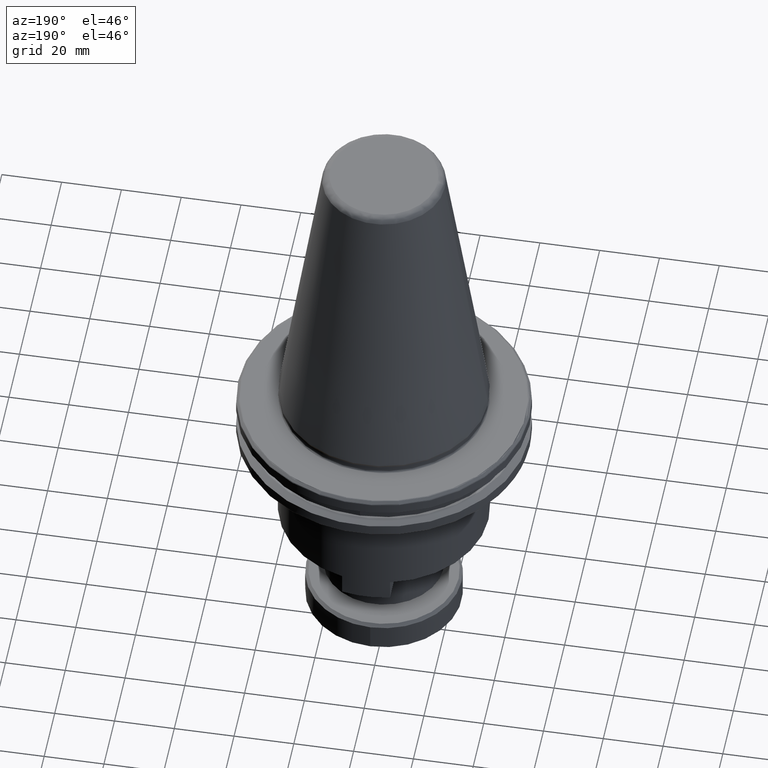
[diagram: clean part render]
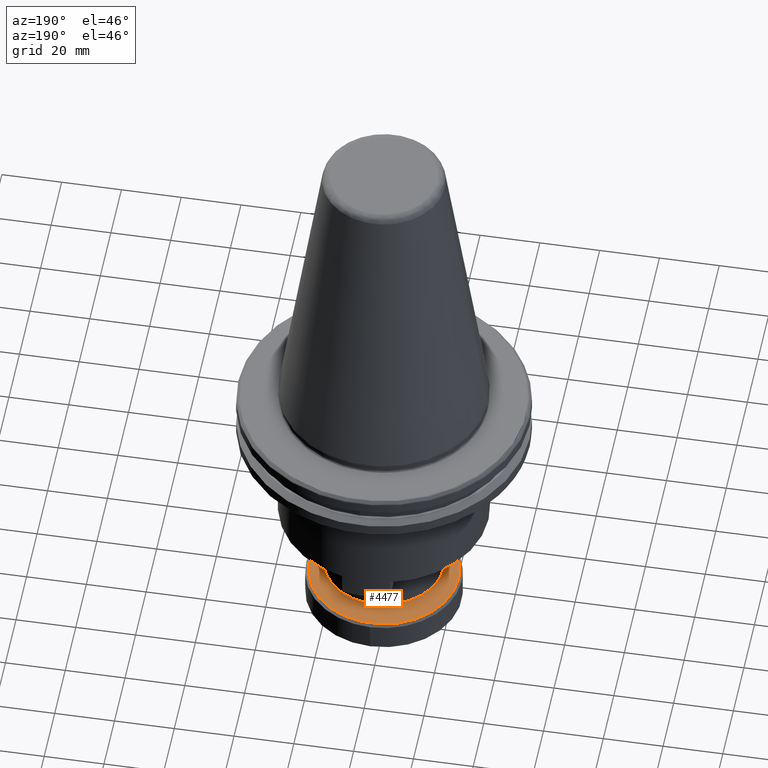
[diagram: same view with one face highlighted and labeled with its STEP entity id]
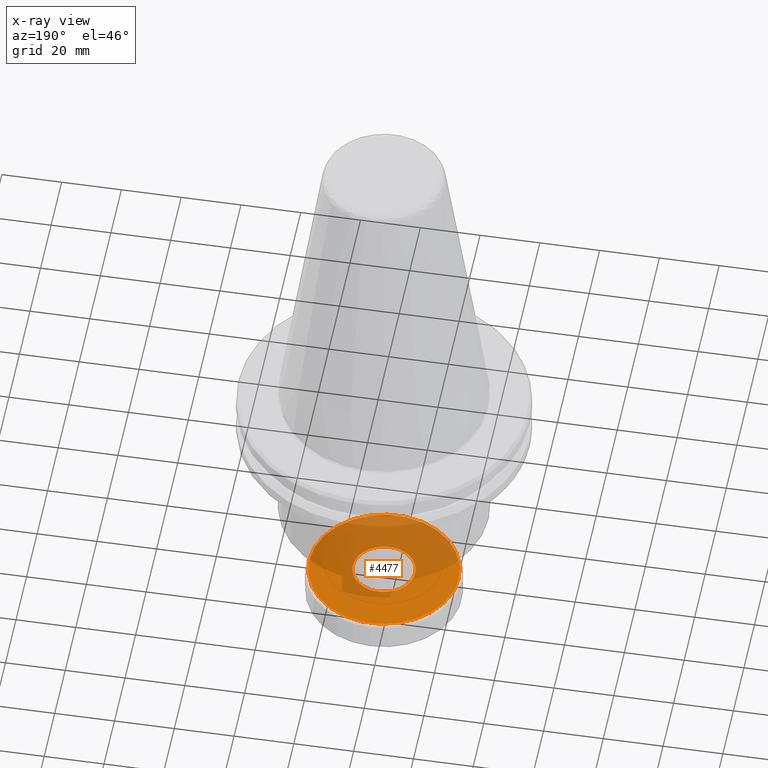
[diagram: x-ray of the same camera — body ghosted, the highlighted face saturated]
A machine part, auxiliary view. The second image highlights one B-rep face of the part: STEP entity #4477.
The next image is the same camera in x-ray: the body ghosted, the highlighted face saturated — about 56% of this face is hidden behind the body in this view.
In plain terms, the highlighted planar face has unit normal (0, 0, 1).
Its self-contained STEP definition (entity closure, byte-faithful):
#3 = CARTESIAN_POINT ( 'NONE',  ( 118.4032396008480500, 180.3901832155320600, 138.8002788091370400 ) ) ;
#27 = CARTESIAN_POINT ( 'NONE',  ( 125.8238660426750900, 199.8214570433929700, 138.8002788091370100 ) ) ;
#45 = CARTESIAN_POINT ( 'NONE',  ( 130.5011908329456700, 196.2975712667894500, 138.8002788091370700 ) ) ;
#57 = CARTESIAN_POINT ( 'NONE',  ( 132.2580884883132300, 192.5598676333413600, 138.8002788091370100 ) ) ;
#179 = CARTESIAN_POINT ( 'NONE',  ( 132.4267637943718800, 188.4723831557644800, 138.8002788091370700 ) ) ;
#189 = CARTESIAN_POINT ( 'NONE',  ( 131.4758307507888400, 185.4581740208667200, 138.8002788091370400 ) ) ;
#289 = CARTESIAN_POINT ( 'NONE',  ( 111.9878614985064600, 192.3146872473978100, 138.8002788091370100 ) ) ;
#301 = CARTESIAN_POINT ( 'NONE',  ( 113.2559242665402100, 184.6938087737610200, 138.8002788091370400 ) ) ;
#302 = CARTESIAN_POINT ( 'NONE',  ( 113.8408133900018300, 196.3824266841156400, 138.8002788091370100 ) ) ;
#319 = CARTESIAN_POINT ( 'NONE',  ( 111.9342757157283300, 188.1569107248737400, 138.8002788091370400 ) ) ;
#320 = CARTESIAN_POINT ( 'NONE',  ( 118.2431241954778200, 199.7279776143421100, 138.8002788091371000 ) ) ;
#344 = CARTESIAN_POINT ( 'NONE',  ( 122.9457563578517400, 200.4691115598203100, 138.8002788091370100 ) ) ;
#378 = CARTESIAN_POINT ( 'NONE',  ( 126.0202769363419600, 180.4365008800169200, 138.8002788091370700 ) ) ;
#397 = CARTESIAN_POINT ( 'NONE',  ( 120.8091985560709400, 179.7757684358080000, 138.8002788091370400 ) ) ;
#414 = ORIENTED_EDGE ( 'NONE', *, *, #2059, .T. ) ;
#417 = CARTESIAN_POINT ( 'NONE',  ( 117.9981118212874800, 180.5502733429990200, 138.8002788091370700 ) ) ;
#424 = VERTEX_POINT ( 'NONE', #4429 ) ;
#432 = CARTESIAN_POINT ( 'NONE',  ( 125.9402706081273500, 199.7767452268588200, 138.8002788091370400 ) ) ;
#449 = CARTESIAN_POINT ( 'NONE',  ( 130.7584959476619400, 195.9313388702376000, 138.8002788091370400 ) ) ;
#466 = CARTESIAN_POINT ( 'NONE',  ( 132.3515593962334500, 192.1281225215070400, 138.8002788091370400 ) ) ;
#502 = CARTESIAN_POINT ( 'NONE',  ( 122.1529126039459900, 190.0907862128019900, 138.8002788091371000 ) ) ;
#508 = CIRCLE ( 'NONE', #2662, 24.99999999999998200 ) ;
#560 = CARTESIAN_POINT ( 'NONE',  ( 96.85291260394599500, 164.7907862128020000, 138.8002788091370400 ) ) ;
#584 = CARTESIAN_POINT ( 'NONE',  ( 132.3934745250912200, 188.2766046778066600, 138.8002788091370400 ) ) ;
#597 = CARTESIAN_POINT ( 'NONE',  ( 131.0451316036002800, 184.6966445211339200, 138.8002788091370400 ) ) ;
#633 = CARTESIAN_POINT ( 'NONE',  ( 122.1529126039459900, 190.0907862128019900, 138.8002788091371000 ) ) ;
#672 = CARTESIAN_POINT ( 'NONE',  ( 111.7529126036150000, 190.0907862128019900, 138.8002788092035200 ) ) ;
#683 = CARTESIAN_POINT ( 'NONE',  ( 112.2795165434658000, 193.3659967547016800, 138.8002788091370100 ) ) ;
#702 = CARTESIAN_POINT ( 'NONE',  ( 112.7233808676794200, 185.6976791207829900, 138.8002788091370400 ) ) ;
#703 = CARTESIAN_POINT ( 'NONE',  ( 115.0527034919476300, 197.6984244229599600, 138.8002788091370400 ) ) ;
#718 = CARTESIAN_POINT ( 'NONE',  ( 111.8107873264386000, 188.8236881382048600, 138.8002788091370700 ) ) ;
#720 = CARTESIAN_POINT ( 'NONE',  ( 118.6381624470018600, 199.8846885327824300, 138.8002788091370100 ) ) ;
#739 = CARTESIAN_POINT ( 'NONE',  ( 123.7712485750507600, 200.3646498141189900, 138.8002788091370700 ) ) ;
#757 = CARTESIAN_POINT ( 'NONE',  ( 128.8549795203749400, 182.1239968894207700, 138.8002788091370400 ) ) ;
#782 = CARTESIAN_POINT ( 'NONE',  ( 125.1906154896054800, 180.1342337137948800, 138.8002788091370100 ) ) ;
#798 = CARTESIAN_POINT ( 'NONE',  ( 120.3974689771752200, 179.8398747969896500, 138.8002788091370100 ) ) ;
#809 = CARTESIAN_POINT ( 'NONE',  ( 116.9840502846586100, 181.0631450047062900, 138.8002788091370400 ) ) ;
#833 = CARTESIAN_POINT ( 'NONE',  ( 126.7855247958908100, 199.4137043596407500, 138.8002788091370700 ) ) ;
#849 = CARTESIAN_POINT ( 'NONE',  ( 131.0499009413494500, 195.4877636518481300, 138.8002788091370400 ) ) ;
#861 = CARTESIAN_POINT ( 'NONE',  ( 132.3715494921633800, 192.0246617007309200, 138.8002788091370100 ) ) ;
#904 = DIRECTION ( 'NONE',  ( -1.000000000000000000, 0.0000000000000000000, 0.0000000000000000000 ) ) ;
#934 = EDGE_CURVE ( 'NONE', #424, #2997, #2309, .T. ) ;
#976 = CARTESIAN_POINT ( 'NONE',  ( 132.3831212312066400, 188.2190882982455100, 138.8002788091370100 ) ) ;
#987 = CARTESIAN_POINT ( 'NONE',  ( 130.9067476837759000, 184.4748871569024400, 138.8002788091370400 ) ) ;
#1010 = ORIENTED_EDGE ( 'NONE', *, *, #2864, .T. ) ;
#1031 = DIRECTION ( 'NONE',  ( -1.000000000000000000, 0.0000000000000000000, 0.0000000000000000000 ) ) ;
#1073 = CARTESIAN_POINT ( 'NONE',  ( 116.5370135480495900, 181.3369511329680400, 138.8002788091370100 ) ) ;
#1074 = CARTESIAN_POINT ( 'NONE',  ( 112.4222417733565500, 193.7617396515243800, 138.8002788091370400 ) ) ;
#1090 = CARTESIAN_POINT ( 'NONE',  ( 112.5490639334355900, 186.0997802054237700, 138.8002788091370400 ) ) ;
#1091 = CARTESIAN_POINT ( 'NONE',  ( 115.9461275499598800, 198.4390644418052100, 138.8002788091370400 ) ) ;
#1103 = CARTESIAN_POINT ( 'NONE',  ( 111.7529126036150000, 190.0907862128019900, 138.8002788092035200 ) ) ;
#1104 = CARTESIAN_POINT ( 'NONE',  ( 119.6838311834227400, 200.1959620971792300, 138.8002788091370400 ) ) ;
#1131 = CARTESIAN_POINT ( 'NONE',  ( 123.9670730890184100, 200.3313520281837400, 138.8002788091370100 ) ) ;
#1148 = CARTESIAN_POINT ( 'NONE',  ( 128.1408377238430800, 181.5870528942168400, 138.8002788091370100 ) ) ;
#1163 = CARTESIAN_POINT ( 'NONE',  ( 124.3346667130528300, 179.9215824249458500, 138.8002788091370100 ) ) ;
#1177 = CARTESIAN_POINT ( 'NONE',  ( 120.2996172279103300, 179.8572305642626400, 138.8002788091370400 ) ) ;
#1213 = CARTESIAN_POINT ( 'NONE',  ( 127.5470542956182400, 198.9830052124554500, 138.8002788091370700 ) ) ;
#1225 = CARTESIAN_POINT ( 'NONE',  ( 131.5824443402094900, 194.4838933048278000, 138.8002788091371000 ) ) ;
#1246 = CARTESIAN_POINT ( 'NONE',  ( 132.4950378814533300, 191.3578842874085200, 138.8002788091370400 ) ) ;
#1285 = PLANE ( 'NONE',  #3709 ) ;
#1361 = CARTESIAN_POINT ( 'NONE',  ( 132.2023979770025900, 187.3763000568012600, 138.8002788091370400 ) ) ;
#1378 = CARTESIAN_POINT ( 'NONE',  ( 130.0142259536647200, 183.2443310593732800, 138.8002788091370700 ) ) ;
#1450 = CARTESIAN_POINT ( 'NONE',  ( 111.7746156246735000, 190.8837833059691300, 138.8002788091370700 ) ) ;
#1462 = CARTESIAN_POINT ( 'NONE',  ( 115.3064574505317900, 182.2294728630619100, 138.8002788091370700 ) ) ;
#1463 = CARTESIAN_POINT ( 'NONE',  ( 112.4669535898934900, 193.8781442169856500, 138.8002788091370700 ) ) ;
#1481 = CARTESIAN_POINT ( 'NONE',  ( 112.4986272711638400, 186.2234218804074100, 138.8002788091370100 ) ) ;
#1482 = CARTESIAN_POINT ( 'NONE',  ( 116.3123599465114400, 198.6963695565207200, 138.8002788091370700 ) ) ;
#1499 = CARTESIAN_POINT ( 'NONE',  ( 120.1155762952460000, 200.2894330050955900, 138.8002788091370700 ) ) ;
#1522 = CARTESIAN_POINT ( 'NONE',  ( 124.0246105185020900, 200.3209948400670200, 138.8002788091370700 ) ) ;
#1532 = CARTESIAN_POINT ( 'NONE',  ( 127.9173950384248100, 181.4340916509611100, 138.8002788091370400 ) ) ;
#1555 = CARTESIAN_POINT ( 'NONE',  ( 124.1281939671720800, 179.8800719073140000, 138.8002788091370400 ) ) ;
#1574 = CARTESIAN_POINT ( 'NONE',  ( 119.9290115693353400, 179.9257351073609900, 138.8002788091370400 ) ) ;
#1601 = CARTESIAN_POINT ( 'NONE',  ( 127.7688116598425300, 198.8446212926357400, 138.8002788091370700 ) ) ;
#1619 = CARTESIAN_POINT ( 'NONE',  ( 131.7567612744553600, 194.0817922201825600, 138.8002788091370400 ) ) ;
#1631 = CARTESIAN_POINT ( 'NONE',  ( 132.5529126042770000, 190.0907862128019900, 138.8002788092035200 ) ) ;
#1744 = CARTESIAN_POINT ( 'NONE',  ( 131.9279483519305500, 186.5381197085303000, 138.8002788091370700 ) ) ;
#1826 = CARTESIAN_POINT ( 'NONE',  ( 111.8790614135201200, 191.7091892698336400, 138.8002788091370400 ) ) ;
#1847 = CARTESIAN_POINT ( 'NONE',  ( 114.1861232805550200, 183.3887192963890100, 138.8002788091370400 ) ) ;
#1848 = CARTESIAN_POINT ( 'NONE',  ( 112.8299944570960300, 194.7233984047212500, 138.8002788091370700 ) ) ;
#1865 = CARTESIAN_POINT ( 'NONE',  ( 112.1963601049475600, 187.0530833271167500, 138.8002788091370400 ) ) ;
#1867 = CARTESIAN_POINT ( 'NONE',  ( 116.7559351649051100, 198.9877745502098800, 138.8002788091370700 ) ) ;
#1881 = CARTESIAN_POINT ( 'NONE',  ( 120.2190371160186000, 200.3094231010241800, 138.8002788091370700 ) ) ;
#1900 = CARTESIAN_POINT ( 'NONE',  ( 124.8673987599569600, 200.1402715858610900, 138.8002788091370400 ) ) ;
#1919 = CARTESIAN_POINT ( 'NONE',  ( 127.0965374887277300, 180.9289909832406000, 138.8002788091370400 ) ) ;
#1936 = CARTESIAN_POINT ( 'NONE',  ( 124.0648640469287300, 179.8680265368561800, 138.8002788091370400 ) ) ;
#1950 = CARTESIAN_POINT ( 'NONE',  ( 118.8777020620268300, 180.2173901523216600, 138.8002788091370400 ) ) ;
#1987 = CARTESIAN_POINT ( 'NONE',  ( 128.9993677573656600, 197.9520995625366300, 138.8002788091370700 ) ) ;
#2002 = CARTESIAN_POINT ( 'NONE',  ( 131.8071979367284100, 193.9581505451957900, 138.8002788091370400 ) ) ;
#2059 = EDGE_CURVE ( 'NONE', #3065, #2717, #4334, .T. ) ;
#2116 = DIRECTION ( 'NONE',  ( 1.000000000000000000, 0.0000000000000000000, -0.0000000000000000000 ) ) ;
#2124 = CARTESIAN_POINT ( 'NONE',  ( 132.5529126042775400, 189.7728175699236300, 138.8002788091370400 ) ) ;
#2136 = CARTESIAN_POINT ( 'NONE',  ( 131.8535156012124500, 186.3411132097051300, 138.8002788091370700 ) ) ;
#2205 = ORIENTED_EDGE ( 'NONE', *, *, #2473, .T. ) ;
#2212 = CARTESIAN_POINT ( 'NONE',  ( 111.7529126036145200, 190.4087548556727000, 138.8002788091370400 ) ) ;
#2232 = CARTESIAN_POINT ( 'NONE',  ( 111.9123506828007900, 191.9049677477954400, 138.8002788091370700 ) ) ;
#2248 = CARTESIAN_POINT ( 'NONE',  ( 113.6491792853574600, 184.1028610929121800, 138.8002788091370700 ) ) ;
#2249 = CARTESIAN_POINT ( 'NONE',  ( 113.2606936042883300, 195.4849279044624100, 138.8002788091370400 ) ) ;
#2261 = CARTESIAN_POINT ( 'NONE',  ( 111.9837088160961500, 187.9090321036838700, 138.8002788091370400 ) ) ;
#2262 = CARTESIAN_POINT ( 'NONE',  ( 117.7598055119266600, 199.5203179490710900, 138.8002788091370700 ) ) ;
#2286 = CARTESIAN_POINT ( 'NONE',  ( 120.8856391895394500, 200.4328790340306600, 138.8002788091370100 ) ) ;
#2309 = B_SPLINE_CURVE_WITH_KNOTS ( 'NONE', 3,
 ( #4461, #2124, #4853, #2524, #179, #2917, #584, #3307, #976, #3689, #1361, #4080, #1744, #4478, #2136, #4868, #2542, #189, #2933, #597, #3319, #987, #3707, #1378, #3092, #757, #3483, #1148, #3861, #1532, #4263, #1919, #4648, #2319, #5038, #2718, #378, #3107, #782, #3494, #1163, #3880, #1555, #4273, #1936, #4670, #2331, #5049, #2738, #397, #3118, #798, #3512, #1177, #3895, #1574, #4291, #1950, #4686, #2352, #3, #2752, #417, #3135, #809, #3529, #3405, #1073, #3785, #1462, #4184, #1847, #4576, #2248, #4964, #2647, #301, #3034, #702, #3421, #1090, #3804, #1481, #4202, #1865, #4596, #2261, #4982, #2668, #319, #3050, #718, #3445, #1103 ),
 .UNSPECIFIED., .F., .F.,
 ( 4, 1, 1, 1, 1, 2, 2, 1, 1, 1, 2, 2, 1, 1, 2, 2, 2, 1, 1, 2, 2, 1, 1, 1, 2, 2, 1, 1, 1, 1, 2, 2, 2, 1, 1, 1, 1, 2, 2, 1, 1, 1, 2, 2, 1, 1, 2, 2, 2, 1, 1, 2, 2, 1, 1, 1, 2, 2, 1, 1, 1, 1, 2, 2, 4 ),
 ( 0.0000000000000000000, 0.03125000000001038100, 0.04687500000001569600, 0.05468750000001700000, 0.05859375000001743700, 0.06054687500001899900, 0.06250000000002056700, 0.09375000000003674800, 0.1093750000000448400, 0.1171875000000480700, 0.1210937500000497000, 0.1250000000000513200, 0.1562500000000702500, 0.1718750000000808200, 0.1796875000000867400, 0.1875000000000926200, 0.2500000000001371700, 0.2812500000001586000, 0.2968750000001685900, 0.3046875000001725300, 0.3125000000001765300, 0.3437500000001896800, 0.3593750000001962900, 0.3671875000002006700, 0.3710937500002028900, 0.3750000000002050600, 0.4062500000002218200, 0.4218750000002302000, 0.4296875000002343700, 0.4335937500002364800, 0.4355468750002377500, 0.4375000000002390900, 0.5000000000002523500, 0.5312500000002596800, 0.5468750000002631200, 0.5546875000002642300, 0.5585937500002653400, 0.5605468750002650100, 0.5625000000002646800, 0.5937500000002587900, 0.6093750000002551300, 0.6171875000002533500, 0.6210937500002522400, 0.6250000000002512400, 0.6562500000002391400, 0.6718750000002324800, 0.6796875000002287100, 0.6875000000002248200, 0.7500000000001949600, 0.7812500000001804100, 0.7968750000001731900, 0.8046875000001703100, 0.8125000000001673100, 0.8437500000001511000, 0.8593750000001416600, 0.8671875000001378900, 0.8710937500001344500, 0.8750000000001311200, 0.9062500000001012500, 0.9218750000000864900, 0.9296875000000779400, 0.9335937500000747200, 0.9355468750000731600, 0.9375000000000716100, 1.000000000000000000 ),
 .UNSPECIFIED. ) ;
#2319 = CARTESIAN_POINT ( 'NONE',  ( 126.2653591796890100, 180.5376874400268700, 138.8002788091370700 ) ) ;
#2331 = CARTESIAN_POINT ( 'NONE',  ( 122.7886746448043700, 179.6908186327405000, 138.8002788091370400 ) ) ;
#2352 = CARTESIAN_POINT ( 'NONE',  ( 118.4819591652170200, 180.3601153822103500, 138.8002788091370400 ) ) ;
#2375 = CARTESIAN_POINT ( 'NONE',  ( 125.7055791082218800, 199.8658219607892800, 138.8002788091370100 ) ) ;
#2388 = CARTESIAN_POINT ( 'NONE',  ( 130.1197019273321900, 196.7928531292197900, 138.8002788091370400 ) ) ;
#2408 = CARTESIAN_POINT ( 'NONE',  ( 132.1094651029408500, 193.1284890984980200, 138.8002788091370400 ) ) ;
#2473 = EDGE_CURVE ( 'NONE', #2717, #3065, #508, .T. ) ;
#2524 = CARTESIAN_POINT ( 'NONE',  ( 132.4679091051295600, 188.7469571604622400, 138.8002788091370100 ) ) ;
#2542 = CARTESIAN_POINT ( 'NONE',  ( 131.6934254737533100, 185.9359854301545700, 138.8002788091370400 ) ) ;
#2630 = CARTESIAN_POINT ( 'NONE',  ( 111.9227039766855300, 191.9624841273590100, 138.8002788091370100 ) ) ;
#2647 = CARTESIAN_POINT ( 'NONE',  ( 113.4962180421056200, 184.3263037783250700, 138.8002788091370400 ) ) ;
#2648 = CARTESIAN_POINT ( 'NONE',  ( 113.3990775241163800, 195.7066852687012500, 138.8002788091370400 ) ) ;
#2662 = AXIS2_PLACEMENT_3D ( 'NONE', #633, #3355, #1031 ) ;
#2668 = CARTESIAN_POINT ( 'NONE',  ( 111.9421982984628300, 188.1155048495723200, 138.8002788091369800 ) ) ;
#2669 = CARTESIAN_POINT ( 'NONE',  ( 118.1619065965679200, 199.6946348833154400, 138.8002788091370700 ) ) ;
#2686 = CARTESIAN_POINT ( 'NONE',  ( 122.4707936243816000, 200.4908024232762500, 138.8002788091370400 ) ) ;
#2717 = VERTEX_POINT ( 'NONE', #3900 ) ;
#2718 = CARTESIAN_POINT ( 'NONE',  ( 126.0627010124113500, 180.4535948112600200, 138.8002788091370400 ) ) ;
#2738 = CARTESIAN_POINT ( 'NONE',  ( 121.3600688500514900, 179.7124608657835600, 138.8002788091370400 ) ) ;
#2752 = CARTESIAN_POINT ( 'NONE',  ( 118.3655545997653600, 180.4048271987447000, 138.8002788091370400 ) ) ;
#2772 = CARTESIAN_POINT ( 'NONE',  ( 125.9025856070439900, 199.7913892100715400, 138.8002788091370400 ) ) ;
#2790 = CARTESIAN_POINT ( 'NONE',  ( 130.6566459225321900, 196.0787113326941300, 138.8002788091370400 ) ) ;
#2803 = CARTESIAN_POINT ( 'NONE',  ( 132.3221163917942800, 192.2725403219248800, 138.8002788091370700 ) ) ;
#2858 = EDGE_LOOP ( 'NONE', ( #1010, #4970 ) ) ;
#2864 = EDGE_CURVE ( 'NONE', #2997, #424, #4625, .T. ) ;
#2917 = CARTESIAN_POINT ( 'NONE',  ( 132.4038173710646300, 188.3353066471359500, 138.8002788091370100 ) ) ;
#2933 = CARTESIAN_POINT ( 'NONE',  ( 131.1805538120489700, 184.9219238935291100, 138.8002788091370400 ) ) ;
#2956 = FACE_BOUND ( 'NONE', #2858, .T. ) ;
#2997 = VERTEX_POINT ( 'NONE', #4283 ) ;
#3020 = CARTESIAN_POINT ( 'NONE',  ( 112.1034272308837400, 192.8052723687864000, 138.8002788091370700 ) ) ;
#3034 = CARTESIAN_POINT ( 'NONE',  ( 112.9911173744002300, 185.1471613280002900, 138.8002788091370400 ) ) ;
#3036 = CARTESIAN_POINT ( 'NONE',  ( 114.2915992542126400, 196.9372413662206000, 138.8002788091370100 ) ) ;
#3050 = CARTESIAN_POINT ( 'NONE',  ( 111.9301539422632900, 188.1788292904497300, 138.8002788091370100 ) ) ;
#3051 = CARTESIAN_POINT ( 'NONE',  ( 118.2855482715510900, 199.7450715455872200, 138.8002788091371300 ) ) ;
#3065 = VERTEX_POINT ( 'NONE', #4744 ) ;
#3072 = CARTESIAN_POINT ( 'NONE',  ( 123.4966266518295300, 200.4058039897960000, 138.8002788091370700 ) ) ;
#3092 = CARTESIAN_POINT ( 'NONE',  ( 129.2531217159517200, 182.4831480026489600, 138.8002788091369800 ) ) ;
#3107 = CARTESIAN_POINT ( 'NONE',  ( 125.6676627608815700, 180.2968838928212800, 138.8002788091370100 ) ) ;
#3118 = CARTESIAN_POINT ( 'NONE',  ( 120.5345766328461800, 179.8169226114849600, 138.8002788091370400 ) ) ;
#3135 = CARTESIAN_POINT ( 'NONE',  ( 117.5203004119911900, 180.7678680659694800, 138.8002788091370400 ) ) ;
#3157 = CARTESIAN_POINT ( 'NONE',  ( 126.3077133865987900, 199.6312990826084800, 138.8002788091370400 ) ) ;
#3172 = CARTESIAN_POINT ( 'NONE',  ( 130.8096071657869900, 195.8552686472776300, 138.8002788091370100 ) ) ;
#3186 = CARTESIAN_POINT ( 'NONE',  ( 132.3636269094286000, 192.0660675760330800, 138.8002788091370400 ) ) ;
#3229 = DIRECTION ( 'NONE',  ( -0.0000000000000000000, -0.0000000000000000000, 1.000000000000000000 ) ) ;
#3307 = CARTESIAN_POINT ( 'NONE',  ( 132.3864662578741600, 188.2374800550976200, 138.8002788091370100 ) ) ;
#3319 = CARTESIAN_POINT ( 'NONE',  ( 130.9528779204146400, 184.5474676308149100, 138.8002788091370700 ) ) ;
#3355 = DIRECTION ( 'NONE',  ( -0.0000000000000000000, -0.0000000000000000000, 1.000000000000000000 ) ) ;
#3405 = CARTESIAN_POINT ( 'NONE',  ( 116.6095940219541800, 181.2908208963344000, 138.8002788091370700 ) ) ;
#3406 = CARTESIAN_POINT ( 'NONE',  ( 112.3778768559590200, 193.6434527170664800, 138.8002788091370400 ) ) ;
#3421 = CARTESIAN_POINT ( 'NONE',  ( 112.5998138311796300, 185.9783396370501400, 138.8002788091370400 ) ) ;
#3422 = CARTESIAN_POINT ( 'NONE',  ( 115.4508456875298100, 198.0575755361920200, 138.8002788091370400 ) ) ;
#3445 = CARTESIAN_POINT ( 'NONE',  ( 111.7529126036144800, 189.4544933865873600, 138.8002788091370400 ) ) ;
#3446 = CARTESIAN_POINT ( 'NONE',  ( 119.1152097182714700, 200.0473387118086100, 138.8002788091370700 ) ) ;
#3469 = CARTESIAN_POINT ( 'NONE',  ( 123.9083562307194200, 200.3416976286143300, 138.8002788091370400 ) ) ;
#3483 = CARTESIAN_POINT ( 'NONE',  ( 128.3596976579417500, 181.7425079838053800, 138.8002788091370100 ) ) ;
#3494 = CARTESIAN_POINT ( 'NONE',  ( 124.6219940244580200, 179.9856103284244000, 138.8002788091370700 ) ) ;
#3512 = CARTESIAN_POINT ( 'NONE',  ( 120.3387521188750900, 179.8502203974201700, 138.8002788091370400 ) ) ;
#3529 = CARTESIAN_POINT ( 'NONE',  ( 116.7587709122689700, 181.1985672131516200, 138.8002788091370700 ) ) ;
#3544 = CARTESIAN_POINT ( 'NONE',  ( 127.3217749232258600, 199.1184274209024400, 138.8002788091370700 ) ) ;
#3559 = CARTESIAN_POINT ( 'NONE',  ( 131.3147078334875200, 195.0344110976125800, 138.8002788091370400 ) ) ;
#3580 = CARTESIAN_POINT ( 'NONE',  ( 132.3756712656287400, 192.0027431351540200, 138.8002788091370700 ) ) ;
#3689 = CARTESIAN_POINT ( 'NONE',  ( 132.3179637093823000, 187.8668851781969000, 138.8002788091370700 ) ) ;
#3707 = CARTESIAN_POINT ( 'NONE',  ( 130.4650118178877600, 183.7991457414906100, 138.8002788091370400 ) ) ;
#3709 = AXIS2_PLACEMENT_3D ( 'NONE', #560, #4454, #2116 ) ;
#3785 = CARTESIAN_POINT ( 'NONE',  ( 115.8612721326169500, 181.7786869988703700, 138.8002788091370700 ) ) ;
#3786 = CARTESIAN_POINT ( 'NONE',  ( 112.4523096066788200, 193.8404592158967700, 138.8002788091370700 ) ) ;
#3804 = CARTESIAN_POINT ( 'NONE',  ( 112.5157212024091100, 186.1809978043336300, 138.8002788091371000 ) ) ;
#3805 = CARTESIAN_POINT ( 'NONE',  ( 116.1649874840550500, 198.5945195313914300, 138.8002788091370400 ) ) ;
#3823 = CARTESIAN_POINT ( 'NONE',  ( 119.9711584948325900, 200.2599900006578900, 138.8002788091370400 ) ) ;
#3839 = CARTESIAN_POINT ( 'NONE',  ( 124.0062079799824900, 200.3243418613414000, 138.8002788091370700 ) ) ;
#3861 = CARTESIAN_POINT ( 'NONE',  ( 127.9934652613840000, 181.4852028690856700, 138.8002788091370700 ) ) ;
#3864 = FACE_OUTER_BOUND ( 'NONE', #5023, .T. ) ;
#3880 = CARTESIAN_POINT ( 'NONE',  ( 124.1902489126424600, 179.8921394205083000, 138.8002788091370700 ) ) ;
#3895 = CARTESIAN_POINT ( 'NONE',  ( 120.2812146893899600, 179.8605775855370700, 138.8002788091370700 ) ) ;
#3900 = CARTESIAN_POINT ( 'NONE',  ( 147.1529126039459600, 190.0907862128019900, 138.8002788091371000 ) ) ;
#3932 = CARTESIAN_POINT ( 'NONE',  ( 127.6962311859350600, 198.8907515292712600, 138.8002788091371000 ) ) ;
#3948 = CARTESIAN_POINT ( 'NONE',  ( 131.7060113767105300, 194.2032327885577600, 138.8002788091370400 ) ) ;
#3964 = CARTESIAN_POINT ( 'NONE',  ( 132.5529126042775100, 190.7270790390258800, 138.8002788091370100 ) ) ;
#4080 = CARTESIAN_POINT ( 'NONE',  ( 132.0263086644219200, 186.8155756708900400, 138.8002788091370400 ) ) ;
#4171 = CARTESIAN_POINT ( 'NONE',  ( 111.8379161027623600, 191.4346152651316400, 138.8002788091370700 ) ) ;
#4184 = CARTESIAN_POINT ( 'NONE',  ( 114.5452743937881100, 182.9905771008047300, 138.8002788091370400 ) ) ;
#4186 = CARTESIAN_POINT ( 'NONE',  ( 112.6123997341345700, 194.2455869954402200, 138.8002788091370100 ) ) ;
#4202 = CARTESIAN_POINT ( 'NONE',  ( 112.3590102839715700, 186.5760360558515500, 138.8002788091370400 ) ) ;
#4203 = CARTESIAN_POINT ( 'NONE',  ( 116.3884301694701000, 198.7474807746448600, 138.8002788091370400 ) ) ;
#4224 = CARTESIAN_POINT ( 'NONE',  ( 120.1776312407179600, 200.3015005182900300, 138.8002788091370700 ) ) ;
#4246 = CARTESIAN_POINT ( 'NONE',  ( 124.3768136385569700, 200.2558373182416500, 138.8002788091370400 ) ) ;
#4263 = CARTESIAN_POINT ( 'NONE',  ( 127.5498900429752400, 181.1937978753862500, 138.8002788091370400 ) ) ;
#4273 = CARTESIAN_POINT ( 'NONE',  ( 124.0867880918723200, 179.8721493245797400, 138.8002788091370700 ) ) ;
#4283 = CARTESIAN_POINT ( 'NONE',  ( 111.7529126036150000, 190.0907862128019900, 138.8002788092035200 ) ) ;
#4291 = CARTESIAN_POINT ( 'NONE',  ( 119.4384264479355300, 180.0413008397405000, 138.8002788091370700 ) ) ;
#4324 = CARTESIAN_POINT ( 'NONE',  ( 128.4445530752737200, 198.4028854267349400, 138.8002788091370700 ) ) ;
#4334 = CIRCLE ( 'NONE', #4928, 24.99999999999998200 ) ;
#4338 = CARTESIAN_POINT ( 'NONE',  ( 131.7901040054823600, 194.0005746212716500, 138.8002788091370700 ) ) ;
#4429 = CARTESIAN_POINT ( 'NONE',  ( 132.5529126042770000, 190.0907862128019900, 138.8002788092035200 ) ) ;
#4454 = DIRECTION ( 'NONE',  ( 0.0000000000000000000, 0.0000000000000000000, 1.000000000000000000 ) ) ;
#4461 = CARTESIAN_POINT ( 'NONE',  ( 132.5529126042770000, 190.0907862128019900, 138.8002788092035200 ) ) ;
#4477 = ADVANCED_FACE ( 'NONE', ( #3864, #2956 ), #1285, .T. ) ;
#4478 = CARTESIAN_POINT ( 'NONE',  ( 131.8835834345340200, 186.4198327740753300, 138.8002788091370700 ) ) ;
#4563 = CARTESIAN_POINT ( 'NONE',  ( 111.9020078368273400, 191.8462657784648700, 138.8002788091370100 ) ) ;
#4576 = CARTESIAN_POINT ( 'NONE',  ( 113.8046343749428100, 183.8840011588181100, 138.8002788091370100 ) ) ;
#4577 = CARTESIAN_POINT ( 'NONE',  ( 113.1252713958376400, 195.2596485320629500, 138.8002788091370400 ) ) ;
#4596 = CARTESIAN_POINT ( 'NONE',  ( 112.0477367195761200, 187.6217047922707200, 138.8002788091370400 ) ) ;
#4597 = CARTESIAN_POINT ( 'NONE',  ( 117.2092877191438300, 199.2525814423497400, 138.8002788091371000 ) ) ;
#4619 = CARTESIAN_POINT ( 'NONE',  ( 120.2409611609629000, 200.3135458887479100, 138.8002788091371000 ) ) ;
#4625 = B_SPLINE_CURVE_WITH_KNOTS ( 'NONE', 3,
 ( #672, #2212, #1450, #4171, #1826, #4563, #2232, #4948, #2630, #289, #3020, #683, #3406, #1074, #3786, #1463, #4186, #1848, #4577, #2249, #4965, #2648, #302, #3036, #703, #3422, #1091, #3805, #1482, #4203, #1867, #4597, #2262, #4983, #2669, #320, #3051, #720, #3446, #1104, #3823, #1499, #4224, #1881, #4619, #2286, #5000, #2686, #344, #3072, #739, #3469, #1131, #3839, #1522, #4246, #1900, #4633, #2375, #27, #2772, #432, #3157, #833, #3544, #1213, #3932, #1601, #4324, #1987, #4719, #2388, #45, #2790, #449, #3172, #849, #3559, #1225, #3948, #1619, #4338, #2002, #4736, #2408, #57, #2803, #466, #3186, #861, #3580, #1246, #3964, #1631 ),
 .UNSPECIFIED., .F., .F.,
 ( 4, 1, 1, 1, 1, 2, 2, 1, 1, 1, 2, 2, 1, 1, 2, 2, 2, 1, 1, 2, 2, 1, 1, 1, 2, 2, 1, 1, 1, 1, 2, 2, 2, 1, 1, 1, 1, 2, 2, 1, 1, 1, 2, 2, 1, 1, 2, 2, 2, 1, 1, 2, 2, 1, 1, 1, 2, 2, 1, 1, 1, 1, 2, 2, 4 ),
 ( 0.0000000000000000000, 0.03124999999995819300, 0.04687499999993728600, 0.05468749999992828700, 0.05859374999992367900, 0.06054687499992283900, 0.06249999999992199300, 0.09374999999990482600, 0.1093749999998964200, 0.1171874999998936400, 0.1210937499998912800, 0.1249999999998888900, 0.1562499999998717400, 0.1718749999998640000, 0.1796874999998601100, 0.1874999999998562300, 0.2499999999998373000, 0.2812499999998274200, 0.2968749999998217000, 0.3046874999998190900, 0.3124999999998164800, 0.3437499999998097100, 0.3593749999998057100, 0.3671874999998043200, 0.3710937499998031600, 0.3749999999998019400, 0.4062499999997962200, 0.4218749999997927800, 0.4296874999997913300, 0.4335937499997911700, 0.4355468749997908900, 0.4374999999997906100, 0.4999999999997969400, 0.5312499999998007100, 0.5468749999998026000, 0.5546874999998034900, 0.5585937499998039300, 0.5605468749998043800, 0.5624999999998049300, 0.5937499999998185900, 0.6093749999998244700, 0.6171874999998274700, 0.6210937499998276900, 0.6249999999998279200, 0.6562499999998368000, 0.6718749999998412400, 0.6796874999998434600, 0.6874999999998456800, 0.7499999999998561200, 0.7812499999998605600, 0.7968749999998627800, 0.8046874999998648900, 0.8124999999998668800, 0.8437499999998814300, 0.8593749999998892000, 0.8671874999998913100, 0.8710937499998928600, 0.8749999999998945300, 0.9062499999999040800, 0.9218749999999087400, 0.9296874999999126300, 0.9335937499999160700, 0.9355468749999178400, 0.9374999999999195100, 1.000000000000000000 ),
 .UNSPECIFIED. ) ;
#4633 = CARTESIAN_POINT ( 'NONE',  ( 125.4281231458655400, 199.9641822732805600, 138.8002788091370400 ) ) ;
#4648 = CARTESIAN_POINT ( 'NONE',  ( 126.5460196959500400, 180.6612544765227400, 138.8002788091370400 ) ) ;
#4670 = CARTESIAN_POINT ( 'NONE',  ( 123.4201860183657400, 179.7486933915732800, 138.8002788091370400 ) ) ;
#4686 = CARTESIAN_POINT ( 'NONE',  ( 118.6002460996703100, 180.3157504648135600, 138.8002788091370400 ) ) ;
#4719 = CARTESIAN_POINT ( 'NONE',  ( 129.7605508141010700, 197.1909953248019200, 138.8002788091369800 ) ) ;
#4736 = CARTESIAN_POINT ( 'NONE',  ( 131.9468149239183400, 193.6055363697586500, 138.8002788091370400 ) ) ;
#4744 = CARTESIAN_POINT ( 'NONE',  ( 97.15291260394600700, 190.0907862128019900, 138.8002788091371000 ) ) ;
#4853 = CARTESIAN_POINT ( 'NONE',  ( 132.5312095832185300, 189.2977891196214600, 138.8002788091370700 ) ) ;
#4868 = CARTESIAN_POINT ( 'NONE',  ( 131.8388716179990800, 186.3034282086195200, 138.8002788091370400 ) ) ;
#4928 = AXIS2_PLACEMENT_3D ( 'NONE', #502, #3229, #904 ) ;
#4948 = CARTESIAN_POINT ( 'NONE',  ( 111.9193589500177400, 191.9440923705053300, 138.8002788091370400 ) ) ;
#4964 = CARTESIAN_POINT ( 'NONE',  ( 113.5473292602288600, 184.2502335553676900, 138.8002788091370700 ) ) ;
#4965 = CARTESIAN_POINT ( 'NONE',  ( 113.3529472874753600, 195.6341047947847800, 138.8002788091370100 ) ) ;
#4970 = ORIENTED_EDGE ( 'NONE', *, *, #934, .T. ) ;
#4982 = CARTESIAN_POINT ( 'NONE',  ( 111.9542658116576600, 188.0534499040994700, 138.8002788091370400 ) ) ;
#4983 = CARTESIAN_POINT ( 'NONE',  ( 118.0404660281940700, 199.6438849855711600, 138.8002788091370100 ) ) ;
#5000 = CARTESIAN_POINT ( 'NONE',  ( 121.5171505630747800, 200.4907537928635300, 138.8002788091371300 ) ) ;
#5023 = EDGE_LOOP ( 'NONE', ( #414, #2205 ) ) ;
#5038 = CARTESIAN_POINT ( 'NONE',  ( 126.1439186113187400, 180.4869375422848900, 138.8002788091370400 ) ) ;
#5049 = CARTESIAN_POINT ( 'NONE',  ( 121.8350315835168500, 179.6907700023276700, 138.8002788091370700 ) ) ;